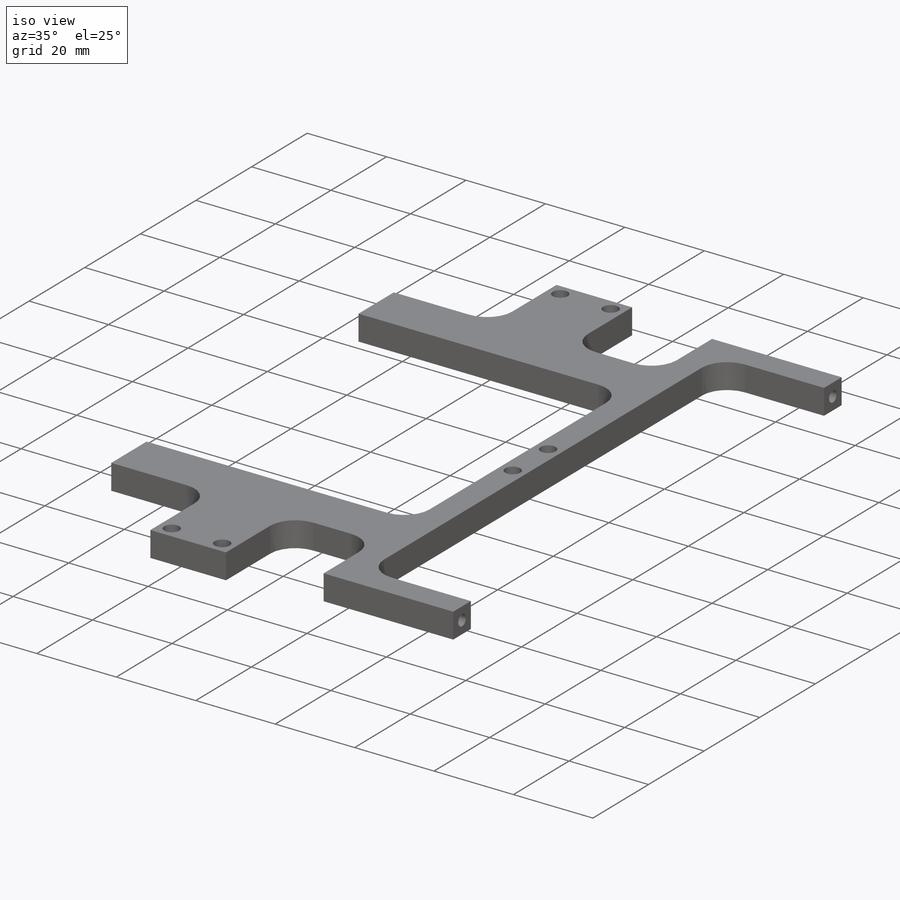
[diagram: iso view]
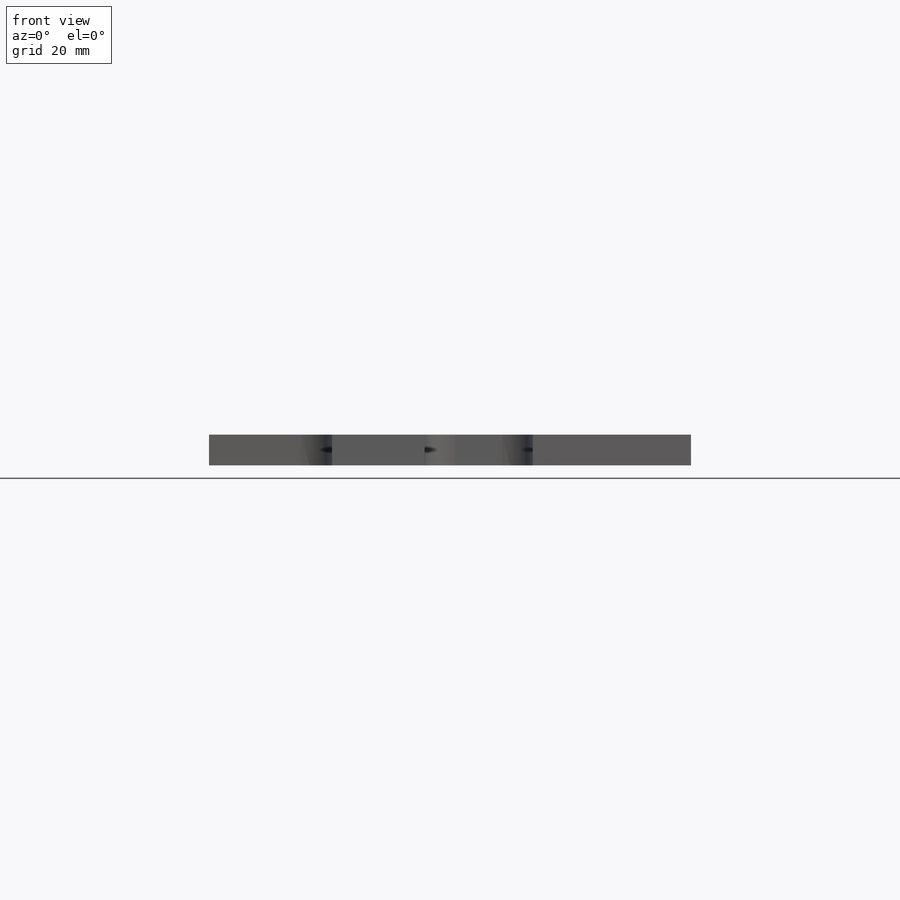
[diagram: front view]
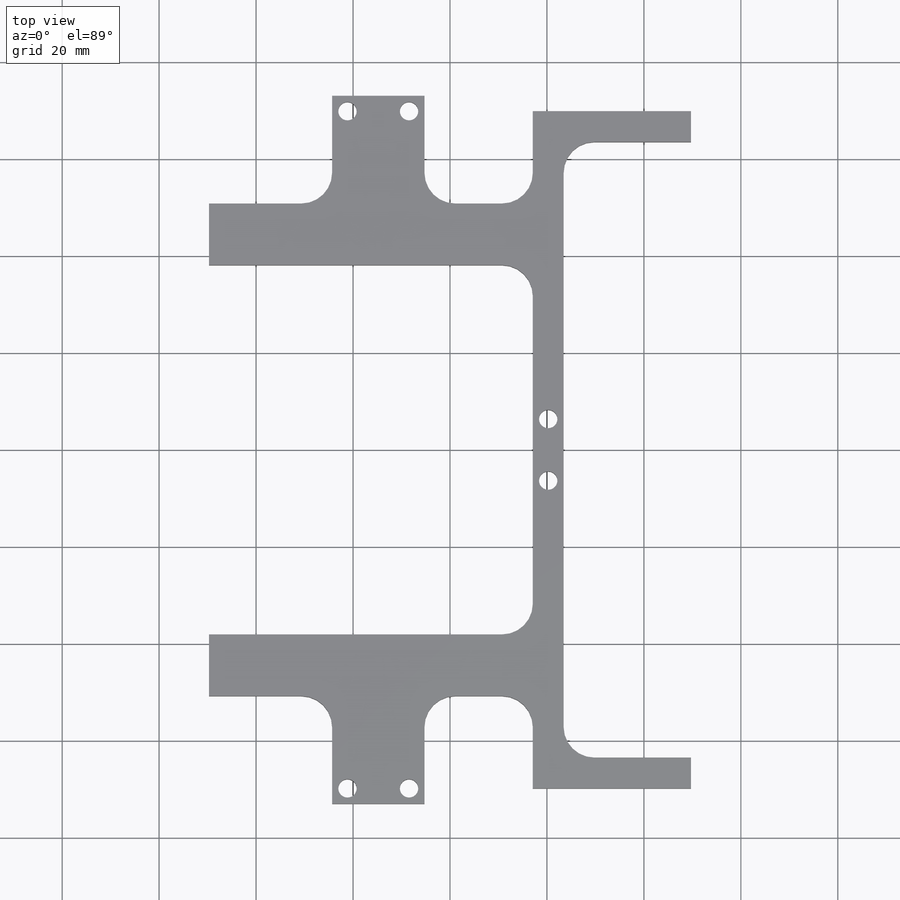
[diagram: top view]
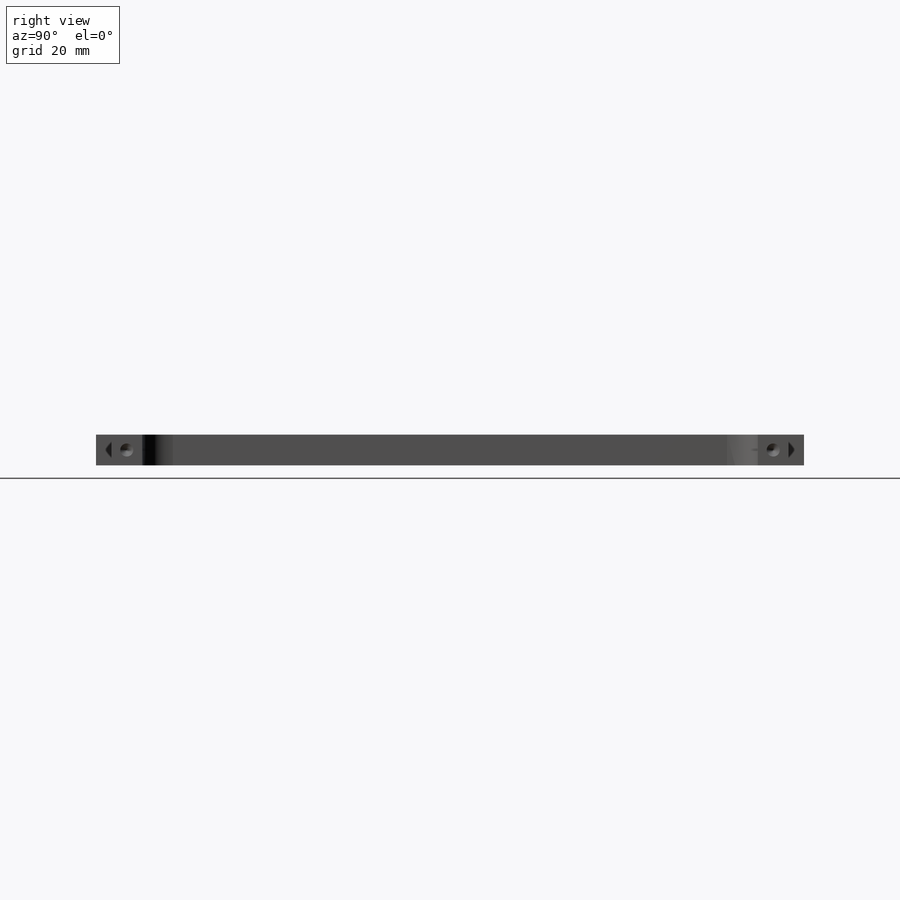
[diagram: right view]
SOLIDWORKS PART (.sldprt)
format: sldprt  version: not decoded by parser v0  size: 353,792 bytes
history: native  units: mm
features: sketch x11, hole x4, extrude x2, fillet x2, material x1, cut_extrude x1 (+11 scaffold rows collapsed)
feature tree (32):
  scaffold x11  (default folders/planes/origin — collapsed)
  material  "6061 Alloy"
  sketch  "Sketch1"  dims[D1=99.441mm D2=139.7mm]
  extrude  "Extrude1"  Depth=6.35mm
  sketch  "Sketch2"  dims[D1=101.6mm D2=66.802mm D3=6.35mm D4=6.35mm D5=6.35mm D6=12.7mm D7=12.7mm]
  cut_extrude  "Cut-Extrude1"  Depth=6.35mm
  fillet  "Fillet1"  Radius=6.35mm
  hole  "Tap Drill for #6 Tap1"  Diameter=2.7051mm Depth=12.7mm
  sketch  "3DSketch1"  dims[D1=3.175mm D2=3.175mm D3=6.35mm D4=6.35mm]
  sketch  "Sketch3"  dims[hole-wizard template sketch: 47 standard entries collapsed; hole parameters kept: c15.Hole Depth=12.7mm c15.D3=~14.816244mm c15.Drill Angle=118.0deg]
  hole  "Tap Drill for #6 Tap2"  Diameter=2.7051mm Depth=12.7mm
  sketch  "3DSketch2"
  sketch  "Sketch4"  dims[hole-wizard template sketch: 47 standard entries collapsed; hole parameters kept: c15.Hole Depth=12.7mm c15.D3=~14.816244mm c15.Drill Angle=118.0deg]
  hole  "#6 Clearance Hole1"  Diameter=3.7973mm Depth=12.7mm
  sketch  "3DSketch3"  dims[D1=3.175mm D2=12.7mm D3=63.5mm]
  sketch  "Sketch5"  dims[hole-wizard template sketch: 50 standard entries collapsed; hole parameters above]
  sketch  "Sketch6"  dims[D1=19.05mm D2=25.4mm D3=22.225mm D4=22.225mm]
  extrude  "Extrude2"  Depth=6.35mm
  fillet  "Fillet2"  Radius=6.35mm
  hole  "#6 Clearance Hole2"  Diameter=3.7973mm Depth=12.7mm
  sketch  "3DSketch4"  dims[D1=3.175mm D2=12.7mm D3=3.175mm D4=3.175mm D5=3.175mm D6=12.7mm]
  sketch  "Sketch7"  dims[hole-wizard template sketch: 50 standard entries collapsed; hole parameters above]
decode coverage: 19 of 20 modeling features carry decoded parameters
note: ~ marks probable driven/reference dimensions
summary: Diameter pulled from absorbed wizard sketch
note: suppression state not decoded; provenance and decode notes live in map.json
